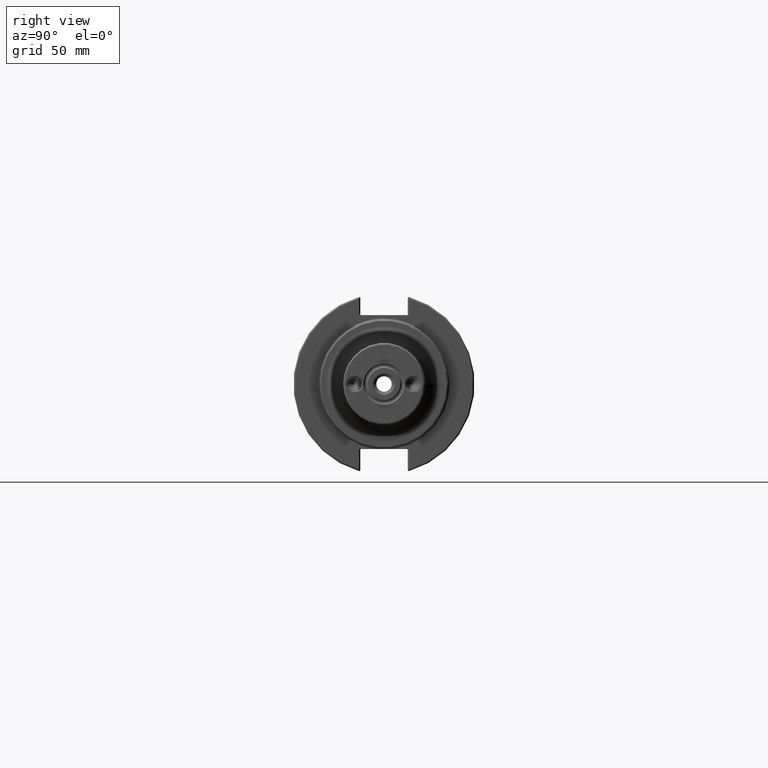
[diagram: clean part render]
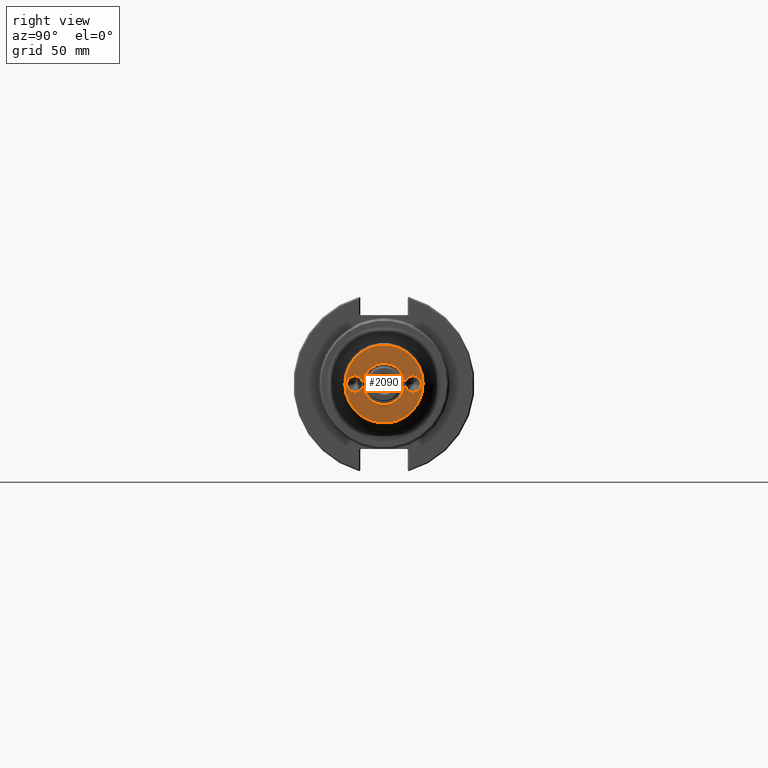
[diagram: same view with one face highlighted and labeled with its STEP entity id]
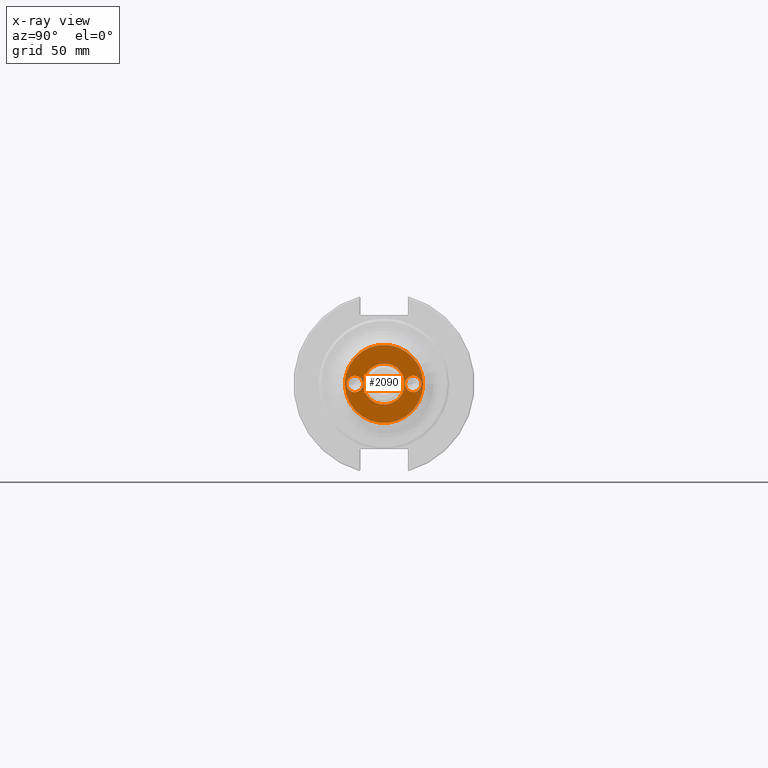
[diagram: x-ray of the same camera — body ghosted, the highlighted face saturated]
A machine part, right view. The second image highlights one B-rep face of the part: STEP entity #2090.
The next image is the same camera in x-ray: the body ghosted, the highlighted face saturated — about 0% of this face is hidden behind the body in this view.
In plain terms, the highlighted planar face has unit normal (1, 0, 0).
Its self-contained STEP definition (entity closure, byte-faithful):
#404=PLANE('',#2287);
#461=FACE_BOUND('',#809,.T.);
#462=FACE_BOUND('',#810,.T.);
#463=FACE_BOUND('',#811,.T.);
#555=CIRCLE('',#2286,0.176);
#556=CIRCLE('',#2288,0.835000000000001);
#557=CIRCLE('',#2289,0.176);
#558=CIRCLE('',#2290,0.441268037431535);
#657=FACE_OUTER_BOUND('',#808,.T.);
#808=EDGE_LOOP('',(#1571));
#809=EDGE_LOOP('',(#1572));
#810=EDGE_LOOP('',(#1573));
#811=EDGE_LOOP('',(#1574));
#1036=VERTEX_POINT('',#3306);
#1037=VERTEX_POINT('',#3309);
#1038=VERTEX_POINT('',#3311);
#1039=VERTEX_POINT('',#3313);
#1249=EDGE_CURVE('',#1036,#1036,#555,.T.);
#1250=EDGE_CURVE('',#1037,#1037,#556,.T.);
#1251=EDGE_CURVE('',#1038,#1038,#557,.T.);
#1252=EDGE_CURVE('',#1039,#1039,#558,.T.);
#1571=ORIENTED_EDGE('',*,*,#1250,.F.);
#1572=ORIENTED_EDGE('',*,*,#1251,.F.);
#1573=ORIENTED_EDGE('',*,*,#1252,.T.);
#1574=ORIENTED_EDGE('',*,*,#1249,.F.);
#2090=ADVANCED_FACE('',(#657,#461,#462,#463),#404,.T.);
#2286=AXIS2_PLACEMENT_3D('',#3307,#2633,#2634);
#2287=AXIS2_PLACEMENT_3D('',#3308,#2635,#2636);
#2288=AXIS2_PLACEMENT_3D('',#3310,#2637,#2638);
#2289=AXIS2_PLACEMENT_3D('',#3312,#2639,#2640);
#2290=AXIS2_PLACEMENT_3D('',#3314,#2641,#2642);
#2633=DIRECTION('center_axis',(1.,1.85241051355599E-48,0.));
#2634=DIRECTION('ref_axis',(0.,0.,1.));
#2635=DIRECTION('center_axis',(1.,1.85241051355599E-48,0.));
#2636=DIRECTION('ref_axis',(0.,0.,-1.));
#2637=DIRECTION('center_axis',(-1.,-1.85241051355599E-48,0.));
#2638=DIRECTION('ref_axis',(1.85241051355599E-48,-1.,1.22464679914735E-16));
#2639=DIRECTION('center_axis',(1.,1.85241051355599E-48,0.));
#2640=DIRECTION('ref_axis',(0.,0.,1.));
#2641=DIRECTION('center_axis',(-1.,-1.85241051355599E-48,0.));
#2642=DIRECTION('ref_axis',(0.,1.,0.));
#3306=CARTESIAN_POINT('',(10.,0.625,-0.176));
#3307=CARTESIAN_POINT('Origin',(10.,0.625,0.));
#3308=CARTESIAN_POINT('Origin',(10.,0.624900000000001,0.));
#3309=CARTESIAN_POINT('',(10.,0.835000000000001,-2.04516015457608E-16));
#3310=CARTESIAN_POINT('Origin',(10.,1.59677786268526E-47,0.));
#3311=CARTESIAN_POINT('',(10.,-0.625,-0.176));
#3312=CARTESIAN_POINT('Origin',(10.,-0.625,0.));
#3313=CARTESIAN_POINT('',(10.,0.441268037431535,0.));
#3314=CARTESIAN_POINT('Origin',(10.,0.,0.));